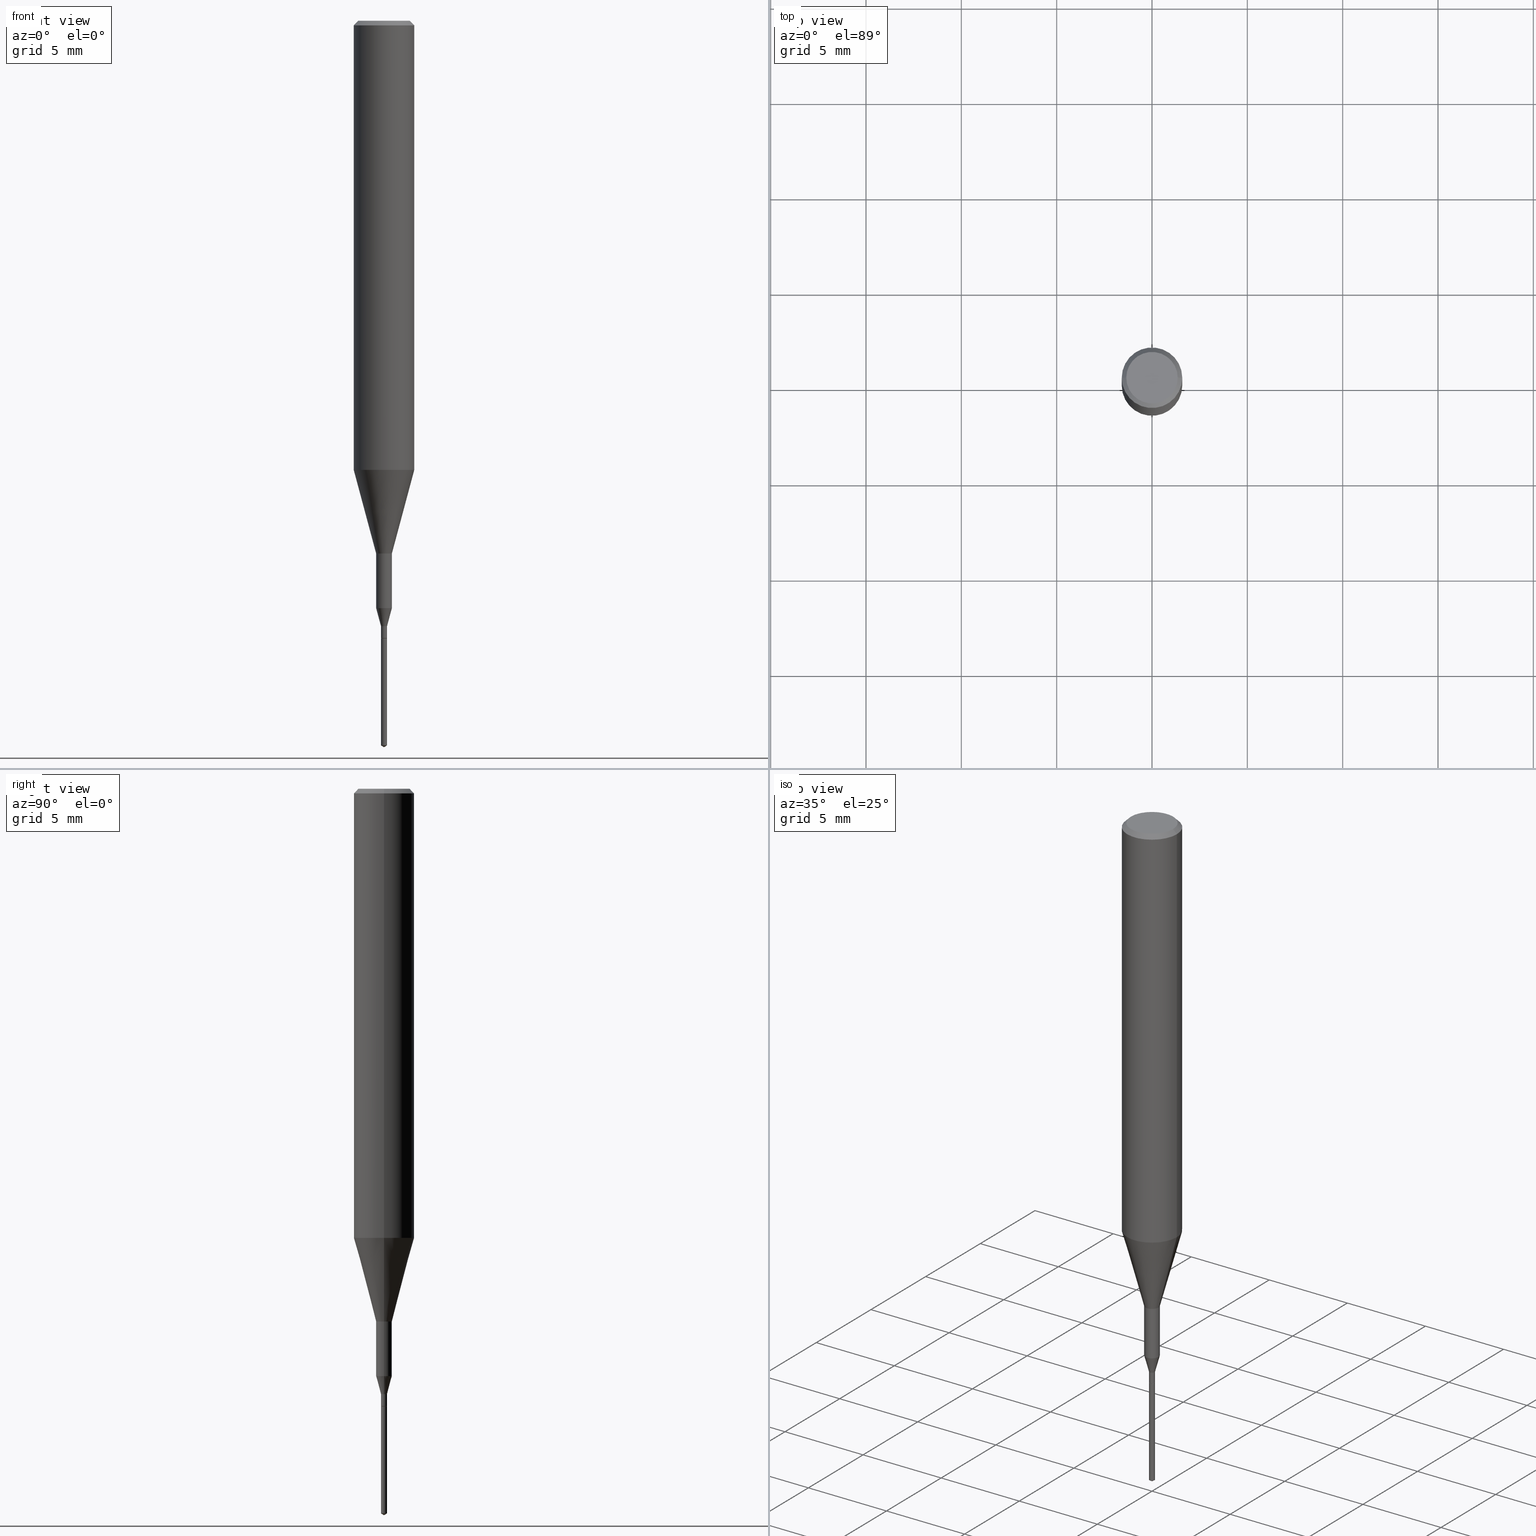
[diagram: canonical four-view strip — front | top / right | iso, engineering-drawing reading convention]
A machine part, canonical four-view strip (front | top / right | iso — engineering-drawing reading convention). The complete STEP part file that produces these views, byte-faithful:
ISO-10303-21;
HEADER;
FILE_DESCRIPTION (( 'STEP AP203' ),
    '1' );
FILE_NAME ('07270.STEP',
    '2024-04-19T13:30:35',
    ( '' ),
    ( '' ),
    'SwSTEP 2.0',
    'SolidWorks 2023',
    '' );
FILE_SCHEMA (( 'CONFIG_CONTROL_DESIGN' ));
ENDSEC;

DATA;
#1 = DIRECTION ( 'NONE',  ( -2.445468806185136597E-29, 3.491481338843145583E-15, 1.000000000000000000 ) ) ;
#2 = LENGTH_MEASURE_WITH_UNIT ( LENGTH_MEASURE( 0.02539999999999999897 ), #369 );
#3 = DESIGN_CONTEXT ( 'detailed design', #356, 'design' ) ;
#4 = EDGE_CURVE ( 'NONE', #430, #511, #482, .T. ) ;
#5 = DIRECTION ( 'NONE',  ( 1.000000000000000000, -6.982962677686258033E-15, 0.000000000000000000 ) ) ;
#6 = CONICAL_SURFACE ( 'NONE', #314, 0.005749999999999999903, 0.7853981633975571919 ) ;
#7 = VECTOR ( 'NONE', #295, 39.37007874015748143 ) ;
#8 = EDGE_CURVE ( 'NONE', #30, #259, #227, .T. ) ;
#9 = FACE_OUTER_BOUND ( 'NONE', #397, .T. ) ;
#10 = ORIENTED_EDGE ( 'NONE', *, *, #512, .T. ) ;
#11 = PERSON_AND_ORGANIZATION_ROLE ( 'design_owner' ) ;
#12 = AXIS2_PLACEMENT_3D ( 'NONE', #569, #475, #521 ) ;
#13 = CARTESIAN_POINT ( 'NONE',  ( 2.267909797027042920E-29, -3.237974131778804114E-15, -0.9273926501499395458 ) ) ;
#14 = LOCAL_TIME ( 9, 30, 35.00000000000000000, #145 ) ;
#15 = CC_DESIGN_DATE_AND_TIME_ASSIGNMENT ( #115, #478, ( #59 ) ) ;
#16 = CC_DESIGN_APPROVAL ( #451, ( #245 ) ) ;
#17 = CARTESIAN_POINT ( 'NONE',  ( 0.000000000000000000, 0.000000000000000000, 0.000000000000000000 ) ) ;
#18 = ADVANCED_FACE ( 'NONE', ( #47 ), #587, .T. ) ;
#19 = DIRECTION ( 'NONE',  ( -6.982962677686265922E-15, -1.000000000000000000, 3.468864327941858877E-15 ) ) ;
#20 = CARTESIAN_POINT ( 'NONE',  ( 2.965569869401343581E-29, -4.234047816051519875E-15, -1.212679491924311348 ) ) ;
#21 = DIRECTION ( 'NONE',  ( -2.445468806185136597E-29, 3.491481338843145583E-15, 1.000000000000000000 ) ) ;
#22 = EDGE_LOOP ( 'NONE', ( #344, #141, #532, #168 ) ) ;
#23 = FACE_OUTER_BOUND ( 'NONE', #29, .T. ) ;
#24 = DATE_TIME_ROLE ( 'classification_date' ) ;
#25 = ORIENTED_EDGE ( 'NONE', *, *, #548, .F. ) ;
#26 = DIRECTION ( 'NONE',  ( 0.2588190451025214611, 1.565188264969620982E-15, 0.9659258262890679791 ) ) ;
#27 = AXIS2_PLACEMENT_3D ( 'NONE', #563, #382, #427 ) ;
#28 = AXIS2_PLACEMENT_3D ( 'NONE', #343, #280, #104 ) ;
#29 = EDGE_LOOP ( 'NONE', ( #146, #387, #243, #25 ) ) ;
#30 = VERTEX_POINT ( 'NONE', #35 ) ;
#31 = EDGE_CURVE ( 'NONE', #585, #466, #514, .T. ) ;
#32 = ORIENTED_EDGE ( 'NONE', *, *, #460, .F. ) ;
#33 = DIRECTION ( 'NONE',  ( -2.445468806185136597E-29, 3.491481338843145583E-15, 1.000000000000000000 ) ) ;
#34 = CARTESIAN_POINT ( 'NONE',  ( -0.006250000000000008153, -4.405484045370583987E-15, -1.274500000000000188 ) ) ;
#35 = CARTESIAN_POINT ( 'NONE',  ( -0.05312499999999999861, 3.873362110279099094E-16, -5.787680772773044021E-18 ) ) ;
#36 = CARTESIAN_POINT ( 'NONE',  ( 3.117972727886049049E-29, -4.451638707025011594E-15, -1.275000000000000133 ) ) ;
#37 = AXIS2_PLACEMENT_3D ( 'NONE', #421, #54, #194 ) ;
#38 = CIRCLE ( 'NONE', #380, 0.01625000000000000056 ) ;
#39 = DIRECTION ( 'NONE',  ( 1.000000000000000000, -6.982962677686267499E-15, 4.876176775795936353E-29 ) ) ;
#40 = ADVANCED_FACE ( 'NONE', ( #415 ), #188, .T. ) ;
#41 = DIRECTION ( 'NONE',  ( -2.445468806185136597E-29, 3.491481338843145583E-15, 1.000000000000000000 ) ) ;
#42 = CARTESIAN_POINT ( 'NONE',  ( 0.006250000000000022031, -4.364351673553932102E-17, 3.047610484872470380E-31 ) ) ;
#43 = DIRECTION ( 'NONE',  ( -5.985567269335822161E-15, -0.8571673007020932378, 0.5150380749100860189 ) ) ;
#44 = FACE_OUTER_BOUND ( 'NONE', #221, .T. ) ;
#45 = AXIS2_PLACEMENT_3D ( 'NONE', #182, #275, #235 ) ;
#46 = LINE ( 'NONE', #418, #411 ) ;
#47 = FACE_OUTER_BOUND ( 'NONE', #223, .T. ) ;
#48 = CARTESIAN_POINT ( 'NONE',  ( 3.117972727886049049E-29, -4.451638707025011594E-15, -1.275000000000000133 ) ) ;
#49 = DIRECTION ( 'NONE',  ( -2.445468806185136877E-29, 3.491481338843145188E-15, 1.000000000000000000 ) ) ;
#50 = ORIENTED_EDGE ( 'NONE', *, *, #214, .F. ) ;
#51 = CC_DESIGN_PERSON_AND_ORGANIZATION_ASSIGNMENT ( #60, #247, ( #463 ) ) ;
#52 = CARTESIAN_POINT ( 'NONE',  ( 2.965569869401343581E-29, -4.234047816051519875E-15, -1.212679491924311348 ) ) ;
#53 = ORIENTED_EDGE ( 'NONE', *, *, #147, .F. ) ;
#54 = DIRECTION ( 'NONE',  ( -2.438088387897960049E-29, 3.491481338843145188E-15, 1.000000000000000000 ) ) ;
#55 = CONICAL_SURFACE ( 'NONE', #565, 0.06250000000000011102, 0.2617993877991501850 ) ;
#56 = ORIENTED_EDGE ( 'NONE', *, *, #147, .T. ) ;
#57 = DIRECTION ( 'NONE',  ( 1.000000000000000000, -6.982962677686265922E-15, 0.000000000000000000 ) ) ;
#58 = DIRECTION ( 'NONE',  ( -2.448375364327009904E-29, 3.487318982152967289E-15, 1.000000000000000000 ) ) ;
#59 = PRODUCT_DEFINITION ( 'UNKNOWN', '', #463, #3 ) ;
#60 = PERSON_AND_ORGANIZATION ( #368, #455 ) ;
#61 = ORIENTED_EDGE ( 'NONE', *, *, #334, .T. ) ;
#62 = FACE_OUTER_BOUND ( 'NONE', #306, .T. ) ;
#63 = VECTOR ( 'NONE', #88, 39.37007874015748143 ) ;
#64 = ORIENTED_EDGE ( 'NONE', *, *, #334, .F. ) ;
#65 = FACE_OUTER_BOUND ( 'NONE', #203, .T. ) ;
#66 = ORIENTED_EDGE ( 'NONE', *, *, #555, .F. ) ;
#67 = SECURITY_CLASSIFICATION_LEVEL ( 'unclassified' ) ;
#68 = ORIENTED_EDGE ( 'NONE', *, *, #274, .T. ) ;
#69 =( NAMED_UNIT ( * ) PLANE_ANGLE_UNIT ( ) SI_UNIT ( $, .RADIAN. ) );
#70 = ADVANCED_FACE ( 'NONE', ( #9 ), #6, .T. ) ;
#71 =( NAMED_UNIT ( * ) SI_UNIT ( $, .STERADIAN. ) SOLID_ANGLE_UNIT ( ) );
#72 = ORIENTED_EDGE ( 'NONE', *, *, #291, .F. ) ;
#73 = CARTESIAN_POINT ( 'NONE',  ( 3.117972727886049049E-29, -4.451638707025011594E-15, -1.275000000000000133 ) ) ;
#74 = VECTOR ( 'NONE', #584, 39.37007874015748143 ) ;
#75 = VECTOR ( 'NONE', #26, 39.37007874015748143 ) ;
#76 = ORIENTED_EDGE ( 'NONE', *, *, #140, .F. ) ;
#77 = DIRECTION ( 'NONE',  ( 1.000000000000000000, -6.982962677686267499E-15, 4.876176775795936353E-29 ) ) ;
#78 = VERTEX_POINT ( 'NONE', #566 ) ;
#79 = DIRECTION ( 'NONE',  ( 6.090539988449656162E-15, 0.8571673007020966795, 0.5150380749100800237 ) ) ;
#80 = CARTESIAN_POINT ( 'NONE',  ( 4.440892098504285983E-17, 0.006249999999994777095, -1.496244621131077590 ) ) ;
#81 = APPROVAL ( #337, 'UNSPECIFIED' ) ;
#82 = DIRECTION ( 'NONE',  ( 1.000000000000000000, -6.982962677686266711E-15, 0.000000000000000000 ) ) ;
#83 = ADVANCED_FACE ( 'NONE', ( #333 ), #517, .T. ) ;
#84 = AXIS2_PLACEMENT_3D ( 'NONE', #374, #551, #285 ) ;
#85 = AXIS2_PLACEMENT_3D ( 'NONE', #174, #575, #363 ) ;
#86 = CARTESIAN_POINT ( 'NONE',  ( 2.965569869401343581E-29, -4.234047816051519875E-15, -1.212679491924311348 ) ) ;
#87 = ADVANCED_FACE ( 'NONE', ( #238 ), #414, .T. ) ;
#88 = DIRECTION ( 'NONE',  ( -0.7071067811866245112, 7.493145998870631839E-15, 0.7071067811864705233 ) ) ;
#89 = CARTESIAN_POINT ( 'NONE',  ( 0.000000000000000000, 0.000000000000000000, 0.000000000000000000 ) ) ;
#90 = DIRECTION ( 'NONE',  ( 1.000000000000000000, -6.982962677686266711E-15, 4.876176775795935232E-29 ) ) ;
#91 = EDGE_CURVE ( 'NONE', #211, #383, #423, .T. ) ;
#92 = CARTESIAN_POINT ( 'NONE',  ( 0.000000000000000000, 0.000000000000000000, 0.000000000000000000 ) ) ;
#93 = AXIS2_PLACEMENT_3D ( 'NONE', #142, #150, #335 ) ;
#94 = VECTOR ( 'NONE', #132, 39.37007874015748143 ) ;
#95 = CARTESIAN_POINT ( 'NONE',  ( 2.292627005798581499E-31, -3.273263755165472033E-17, -0.009375000000000065573 ) ) ;
#96 = LINE ( 'NONE', #185, #63 ) ;
#97 = ORIENTED_EDGE ( 'NONE', *, *, #8, .T. ) ;
#98 = DIRECTION ( 'NONE',  ( -2.445468806185136597E-29, 3.491481338843145583E-15, 1.000000000000000000 ) ) ;
#99 = EDGE_CURVE ( 'NONE', #437, #357, #148, .T. ) ;
#100 = EDGE_CURVE ( 'NONE', #259, #30, #443, .T. ) ;
#101 = COORDINATED_UNIVERSAL_TIME_OFFSET ( 5, 0, .BEHIND. ) ;
#102 = CONICAL_SURFACE ( 'NONE', #462, 0.06250000000000000000, 0.7853981633974452814 ) ;
#103 = AXIS2_PLACEMENT_3D ( 'NONE', #492, #321, #489 ) ;
#104 = DIRECTION ( 'NONE',  ( 1.000000000000000000, -6.982962677686331397E-15, 0.000000000000000000 ) ) ;
#105 = PERSON_AND_ORGANIZATION ( #368, #455 ) ;
#106 = EDGE_LOOP ( 'NONE', ( #287, #261 ) ) ;
#107 = EDGE_CURVE ( 'NONE', #383, #211, #370, .T. ) ;
#108 = ORIENTED_EDGE ( 'NONE', *, *, #31, .F. ) ;
#109 = DIRECTION ( 'NONE',  ( -2.448375364327009624E-29, 3.487318982152967684E-15, 1.000000000000000000 ) ) ;
#110 = EDGE_LOOP ( 'NONE', ( #64, #312, #56, #461 ) ) ;
#111 = DIRECTION ( 'NONE',  ( 1.000000000000000000, -6.982962677686266711E-15, 0.000000000000000000 ) ) ;
#112 = AXIS2_PLACEMENT_3D ( 'NONE', #73, #170, #540 ) ;
#113 = AXIS2_PLACEMENT_3D ( 'NONE', #165, #535, #120 ) ;
#114 = CC_DESIGN_APPROVAL ( #81, ( #463 ) ) ;
#115 = DATE_AND_TIME ( #253, #14 ) ;
#116 = ORIENTED_EDGE ( 'NONE', *, *, #373, .T. ) ;
#117 = ADVANCED_FACE ( 'NONE', ( #303 ), #204, .T. ) ;
#118 = CARTESIAN_POINT ( 'NONE',  ( -4.364351673550257119E-17, -0.006250000000005224467, -1.496244621131077590 ) ) ;
#119 = ORIENTED_EDGE ( 'NONE', *, *, #256, .T. ) ;
#120 = DIRECTION ( 'NONE',  ( 1.000000000000000000, -6.982962677686284854E-15, 0.000000000000000000 ) ) ;
#121 = EDGE_CURVE ( 'NONE', #466, #585, #483, .T. ) ;
#122 = ORIENTED_EDGE ( 'NONE', *, *, #107, .F. ) ;
#123 = CARTESIAN_POINT ( 'NONE',  ( 3.117972727886049049E-29, -4.451638707025011594E-15, -1.275000000000000133 ) ) ;
#124 = ORIENTED_EDGE ( 'NONE', *, *, #226, .T. ) ;
#125 = AXIS2_PLACEMENT_3D ( 'NONE', #52, #513, #422 ) ;
#126 = VECTOR ( 'NONE', #403, 39.37007874015748143 ) ;
#127 = CARTESIAN_POINT ( 'NONE',  ( -0.01625000000000000056, -4.118584621490503690E-15, -1.212679491924311348 ) ) ;
#128 = DIRECTION ( 'NONE',  ( -0.2588190451025214611, 5.211531920934550253E-15, 0.9659258262890679791 ) ) ;
#129 = CARTESIAN_POINT ( 'NONE',  ( 0.006250000000000035909, -4.407995190289472427E-15, -1.250000000000000000 ) ) ;
#130 = ADVANCED_FACE ( 'NONE', ( #296 ), #55, .T. ) ;
#131 = CYLINDRICAL_SURFACE ( 'NONE', #546, 0.006249999999999999480 ) ;
#132 = DIRECTION ( 'NONE',  ( -2.448375364327009624E-29, 3.487318982152967684E-15, 1.000000000000000000 ) ) ;
#133 = EDGE_CURVE ( 'NONE', #466, #78, #200, .T. ) ;
#134 = DIRECTION ( 'NONE',  ( -2.445468806185136597E-29, 3.491481338843145583E-15, 1.000000000000000000 ) ) ;
#135 = ADVANCED_FACE ( 'NONE', ( #62 ), #201, .T. ) ;
#136 = AXIS2_PLACEMENT_3D ( 'NONE', #95, #282, #193 ) ;
#137 = AXIS2_PLACEMENT_3D ( 'NONE', #499, #278, #240 ) ;
#138 = DIRECTION ( 'NONE',  ( -1.000000000000000000, 6.982962677686265922E-15, -4.876176775795935793E-29 ) ) ;
#139 = CARTESIAN_POINT ( 'NONE',  ( 3.117972727886049049E-29, -4.451638707025011594E-15, -1.275000000000000133 ) ) ;
#140 = EDGE_CURVE ( 'NONE', #481, #446, #494, .T. ) ;
#141 = ORIENTED_EDGE ( 'NONE', *, *, #544, .T. ) ;
#142 = CARTESIAN_POINT ( 'NONE',  ( 1.415359278996747967E-46, -2.020757941330909984E-32, -5.787680772770392401E-18 ) ) ;
#143 = ADVANCED_FACE ( 'NONE', ( #65 ), #588, .T. ) ;
#144 = DIRECTION ( 'NONE',  ( 0.000000000000000000, 0.000000000000000000, 1.000000000000000000 ) ) ;
#145 = COORDINATED_UNIVERSAL_TIME_OFFSET ( 5, 0, .BEHIND. ) ;
#146 = ORIENTED_EDGE ( 'NONE', *, *, #555, .T. ) ;
#147 = EDGE_CURVE ( 'NONE', #211, #481, #241, .T. ) ;
#148 = CIRCLE ( 'NONE', #27, 0.005749999999999999903 ) ;
#149 = VECTOR ( 'NONE', #262, 39.37007874015748143 ) ;
#150 = DIRECTION ( 'NONE',  ( -2.445468806185136597E-29, 3.491481338843145583E-15, 1.000000000000000000 ) ) ;
#151 = APPLICATION_PROTOCOL_DEFINITION ( 'international standard', 'config_control_design', 1994, #476 ) ;
#152 = PERSON_AND_ORGANIZATION_ROLE ( 'classification_officer' ) ;
#153 = ORIENTED_EDGE ( 'NONE', *, *, #586, .T. ) ;
#154 = DIRECTION ( 'NONE',  ( 1.000000000000000000, 0.000000000000000000, 0.000000000000000000 ) ) ;
#155 = EDGE_LOOP ( 'NONE', ( #360, #153, #267, #392 ) ) ;
#156 = CARTESIAN_POINT ( 'NONE',  ( 2.292627005798581499E-31, -3.273263755165472033E-17, -0.009375000000000065573 ) ) ;
#157 = ADVANCED_FACE ( 'NONE', ( #498 ), #550, .F. ) ;
#158 = EDGE_LOOP ( 'NONE', ( #124, #68, #294, #298 ) ) ;
#159 = VERTEX_POINT ( 'NONE', #332 ) ;
#160 = FACE_OUTER_BOUND ( 'NONE', #106, .T. ) ;
#161 = AXIS2_PLACEMENT_3D ( 'NONE', #48, #219, #497 ) ;
#162 = LOCAL_TIME ( 9, 30, 35.00000000000000000, #440 ) ;
#163 = EDGE_LOOP ( 'NONE', ( #528, #199, #32, #486 ) ) ;
#164 = ADVANCED_FACE ( 'NONE', ( #505 ), #301, .T. ) ;
#165 = CARTESIAN_POINT ( 'NONE',  ( 3.116749993482957368E-29, -4.449892966355590090E-15, -1.274500000000000188 ) ) ;
#166 = EDGE_LOOP ( 'NONE', ( #441, #436, #116, #72 ) ) ;
#167 = LINE ( 'NONE', #589, #149 ) ;
#168 = ORIENTED_EDGE ( 'NONE', *, *, #379, .F. ) ;
#169 = LINE ( 'NONE', #538, #515 ) ;
#170 = DIRECTION ( 'NONE',  ( -2.445468806185136597E-29, 3.491481338843145583E-15, 1.000000000000000000 ) ) ;
#171 = ORIENTED_EDGE ( 'NONE', *, *, #445, .F. ) ;
#172 = ORIENTED_EDGE ( 'NONE', *, *, #260, .F. ) ;
#173 = EDGE_CURVE ( 'NONE', #430, #523, #471, .T. ) ;
#174 = CARTESIAN_POINT ( 'NONE',  ( 3.117972727886049049E-29, -4.451638707025011594E-15, -1.275000000000000133 ) ) ;
#175 = CLOSED_SHELL ( 'NONE', ( #117, #143, #417, #304, #581 ) ) ;
#176 = VECTOR ( 'NONE', #509, 39.37007874015748143 ) ;
#177 = DIRECTION ( 'NONE',  ( -2.445468806185136877E-29, 3.491481338843145188E-15, 1.000000000000000000 ) ) ;
#178 = ADVANCED_FACE ( 'NONE', ( #516 ), #556, .F. ) ;
#179 = CARTESIAN_POINT ( 'NONE',  ( 3.659662607753242750E-29, -5.223189273994658811E-15, -1.496244621131077590 ) ) ;
#180 = PERSON_AND_ORGANIZATION ( #368, #455 ) ;
#181 = FACE_OUTER_BOUND ( 'NONE', #580, .T. ) ;
#182 = CARTESIAN_POINT ( 'NONE',  ( 3.116749993482957368E-29, -4.449892966355590090E-15, -1.274500000000000188 ) ) ;
#183 = AXIS2_PLACEMENT_3D ( 'NONE', #20, #469, #571 ) ;
#184 = DIRECTION ( 'NONE',  ( -2.448375364327009904E-29, 3.487318982152967289E-15, 1.000000000000000000 ) ) ;
#185 = CARTESIAN_POINT ( 'NONE',  ( -0.005749999999999999903, -4.410782499718806389E-15, -1.275000000000000133 ) ) ;
#186 = AXIS2_PLACEMENT_3D ( 'NONE', #36, #491, #268 ) ;
#187 = APPROVAL_PERSON_ORGANIZATION ( #432, #451, #562 ) ;
#188 = CYLINDRICAL_SURFACE ( 'NONE', #84, 0.06250000000000005551 ) ;
#189 = LINE ( 'NONE', #552, #126 ) ;
#190 = ADVANCED_FACE ( 'NONE', ( #470 ), #102, .T. ) ;
#191 = ORIENTED_EDGE ( 'NONE', *, *, #121, .F. ) ;
#192 = AXIS2_PLACEMENT_3D ( 'NONE', #319, #1, #39 ) ;
#193 = DIRECTION ( 'NONE',  ( -1.000000000000000000, 6.982962677686266711E-15, 0.000000000000000000 ) ) ;
#194 = DIRECTION ( 'NONE',  ( 1.000000000000000000, -6.982962677686265922E-15, 4.876176775795935793E-29 ) ) ;
#195 = DIRECTION ( 'NONE',  ( -2.445468806185136597E-29, 3.491481338843145583E-15, 1.000000000000000000 ) ) ;
#196 = EDGE_CURVE ( 'NONE', #357, #437, #213, .T. ) ;
#197 = DATE_AND_TIME ( #429, #162 ) ;
#198 = CALENDAR_DATE ( 2024, 19, 4 ) ;
#199 = ORIENTED_EDGE ( 'NONE', *, *, #133, .T. ) ;
#200 = LINE ( 'NONE', #255, #388 ) ;
#201 = CONICAL_SURFACE ( 'NONE', #183, 0.01625000000000000056, 0.2617993877991492413 ) ;
#202 = LOCAL_TIME ( 9, 30, 35.00000000000000000, #101 ) ;
#203 = EDGE_LOOP ( 'NONE', ( #220, #490, #108 ) ) ;
#204 = CYLINDRICAL_SURFACE ( 'NONE', #12, 0.006249999999999999480 ) ;
#205 = CARTESIAN_POINT ( 'NONE',  ( 2.292627005798581499E-31, -3.273263755165472033E-17, -0.009375000000000065573 ) ) ;
#206 = FACE_OUTER_BOUND ( 'NONE', #308, .T. ) ;
#207 = ORIENTED_EDGE ( 'NONE', *, *, #544, .F. ) ;
#208 = ADVANCED_FACE ( 'NONE', ( #181 ), #234, .T. ) ;
#209 = CYLINDRICAL_SURFACE ( 'NONE', #399, 0.006250000000000022031 ) ;
#210 = APPROVAL_DATE_TIME ( #472, #81 ) ;
#211 = VERTEX_POINT ( 'NONE', #449 ) ;
#212 = DIRECTION ( 'NONE',  ( -1.000000000000000000, 6.982962677686266711E-15, 0.000000000000000000 ) ) ;
#213 = CIRCLE ( 'NONE', #112, 0.005749999999999999903 ) ;
#214 = EDGE_CURVE ( 'NONE', #442, #511, #270, .T. ) ;
#215 = VECTOR ( 'NONE', #79, 39.37007874015748854 ) ;
#216 = VERTEX_POINT ( 'NONE', #401 ) ;
#217 = CARTESIAN_POINT ( 'NONE',  ( 0.05312499999999999861, -4.129888592719939842E-16, -5.787680772767651417E-18 ) ) ;
#218 = ORIENTED_EDGE ( 'NONE', *, *, #256, .F. ) ;
#219 = DIRECTION ( 'NONE',  ( -2.448375364327009904E-29, 3.487318982152967289E-15, 1.000000000000000000 ) ) ;
#220 = ORIENTED_EDGE ( 'NONE', *, *, #311, .F. ) ;
#221 = EDGE_LOOP ( 'NONE', ( #573, #341, #488, #122 ) ) ;
#222 = PLANE ( 'NONE',  #85 ) ;
#223 = EDGE_LOOP ( 'NONE', ( #171, #248, #353, #172 ) ) ;
#224 = CARTESIAN_POINT ( 'NONE',  ( -0.06250000000000011102, -2.793884921928740709E-15, -0.9273926501499395458 ) ) ;
#225 = DIRECTION ( 'NONE',  ( 1.000000000000000000, -6.982962677686259611E-15, 0.000000000000000000 ) ) ;
#226 = EDGE_CURVE ( 'NONE', #159, #541, #323, .T. ) ;
#227 = CIRCLE ( 'NONE', #398, 0.05312499999999999861 ) ;
#228 = VECTOR ( 'NONE', #49, 39.37007874015748143 ) ;
#229 = CC_DESIGN_PERSON_AND_ORGANIZATION_ASSIGNMENT ( #531, #11, ( #336 ) ) ;
#230 = CARTESIAN_POINT ( 'NONE',  ( 0.06250000000000005551, -4.364351673553920638E-16, 3.047610484872462323E-30 ) ) ;
#231 = FACE_OUTER_BOUND ( 'NONE', #166, .T. ) ;
#232 = LINE ( 'NONE', #381, #176 ) ;
#233 = DIRECTION ( 'NONE',  ( 1.000000000000000000, -6.982962677686258033E-15, 0.000000000000000000 ) ) ;
#234 = CYLINDRICAL_SURFACE ( 'NONE', #322, 0.01624999999999999709 ) ;
#235 = DIRECTION ( 'NONE',  ( 1.000000000000000000, -6.982962677686284854E-15, 0.000000000000000000 ) ) ;
#236 = AXIS2_PLACEMENT_3D ( 'NONE', #433, #250, #345 ) ;
#237 = DIRECTION ( 'NONE',  ( -6.982962677686265133E-15, -1.000000000000000000, 0.000000000000000000 ) ) ;
#238 = FACE_OUTER_BOUND ( 'NONE', #338, .T. ) ;
#239 = LINE ( 'NONE', #375, #495 ) ;
#240 = DIRECTION ( 'NONE',  ( 1.000000000000000000, -6.982962677686265922E-15, 0.000000000000000000 ) ) ;
#241 = LINE ( 'NONE', #230, #542 ) ;
#242 = EDGE_CURVE ( 'NONE', #450, #466, #533, .T. ) ;
#243 = ORIENTED_EDGE ( 'NONE', *, *, #409, .F. ) ;
#244 = AXIS2_PLACEMENT_3D ( 'NONE', #582, #33, #225 ) ;
#245 = SECURITY_CLASSIFICATION ( '', '', #67 ) ;
#246 = DIRECTION ( 'NONE',  ( -2.445468806185136597E-29, 3.491481338843145583E-15, 1.000000000000000000 ) ) ;
#247 = PERSON_AND_ORGANIZATION_ROLE ( 'design_supplier' ) ;
#248 = ORIENTED_EDGE ( 'NONE', *, *, #549, .T. ) ;
#249 = ORIENTED_EDGE ( 'NONE', *, *, #413, .F. ) ;
#250 = DIRECTION ( 'NONE',  ( -2.448375364327009904E-29, 3.487318982152967289E-15, 1.000000000000000000 ) ) ;
#251 = EDGE_LOOP ( 'NONE', ( #473, #61, #76, #53 ) ) ;
#252 = AXIS2_PLACEMENT_3D ( 'NONE', #123, #452, #313 ) ;
#253 = CALENDAR_DATE ( 2024, 19, 4 ) ;
#254 = ORIENTED_EDGE ( 'NONE', *, *, #311, .T. ) ;
#255 = CARTESIAN_POINT ( 'NONE',  ( 4.440892098503743025E-17, 0.006249999999995547312, -1.275000000000000133 ) ) ;
#256 = EDGE_CURVE ( 'NONE', #523, #442, #167, .T. ) ;
#257 = CARTESIAN_POINT ( 'NONE',  ( 0.01625000000000000056, -4.347520959563921552E-15, -1.212679491924311348 ) ) ;
#258 = DATE_AND_TIME ( #389, #271 ) ;
#259 = VERTEX_POINT ( 'NONE', #217 ) ;
#260 = EDGE_CURVE ( 'NONE', #541, #159, #288, .T. ) ;
#261 = ORIENTED_EDGE ( 'NONE', *, *, #291, .T. ) ;
#262 = DIRECTION ( 'NONE',  ( 0.2588190451025205729, 1.565188264969628081E-15, 0.9659258262890684232 ) ) ;
#263 = AXIS2_PLACEMENT_3D ( 'NONE', #13, #290, #57 ) ;
#264 = CIRCLE ( 'NONE', #45, 0.006250000000000008153 ) ;
#265 = ADVANCED_FACE ( 'NONE', ( #359 ), #371, .T. ) ;
#266 = ORIENTED_EDGE ( 'NONE', *, *, #196, .T. ) ;
#267 = ORIENTED_EDGE ( 'NONE', *, *, #548, .T. ) ;
#268 = DIRECTION ( 'NONE',  ( -6.982962677686265133E-15, -1.000000000000000000, 0.000000000000000000 ) ) ;
#269 = CARTESIAN_POINT ( 'NONE',  ( 0.005749999999999999903, -4.491790742421706965E-15, -1.275000000000000133 ) ) ;
#270 = CIRCLE ( 'NONE', #286, 0.01625000000000000056 ) ;
#271 = LOCAL_TIME ( 9, 30, 35.00000000000000000, #395 ) ;
#272 = EDGE_CURVE ( 'NONE', #504, #430, #484, .T. ) ;
#273 = DIRECTION ( 'NONE',  ( -2.448375364327009904E-29, 3.487318982152967289E-15, 1.000000000000000000 ) ) ;
#274 = EDGE_CURVE ( 'NONE', #541, #383, #365, .T. ) ;
#275 = DIRECTION ( 'NONE',  ( -2.445468806185136597E-29, 3.491481338843145583E-15, 1.000000000000000000 ) ) ;
#276 = DIRECTION ( 'NONE',  ( 1.000000000000000000, -6.982962677686266711E-15, 4.875930095424100059E-29 ) ) ;
#277 = AXIS2_PLACEMENT_3D ( 'NONE', #156, #524, #111 ) ;
#278 = DIRECTION ( 'NONE',  ( -2.445468806185136597E-29, 3.491481338843145583E-15, 1.000000000000000000 ) ) ;
#279 = CARTESIAN_POINT ( 'NONE',  ( 3.056836007731421306E-29, -4.364351673553932471E-15, -1.250000000000000000 ) ) ;
#280 = DIRECTION ( 'NONE',  ( -2.445468806185136597E-29, 3.491481338843145583E-15, 1.000000000000000000 ) ) ;
#281 = ORIENTED_EDGE ( 'NONE', *, *, #346, .T. ) ;
#282 = DIRECTION ( 'NONE',  ( 2.445468806185136597E-29, -3.491481338843145583E-15, -1.000000000000000000 ) ) ;
#283 = EDGE_LOOP ( 'NONE', ( #97, #536 ) ) ;
#284 = DIRECTION ( 'NONE',  ( 1.000000000000000000, -6.982962677686265922E-15, 0.000000000000000000 ) ) ;
#285 = DIRECTION ( 'NONE',  ( 1.000000000000000000, -6.982962677686266711E-15, 4.876176775795935232E-29 ) ) ;
#286 = AXIS2_PLACEMENT_3D ( 'NONE', #525, #41, #233 ) ;
#287 = ORIENTED_EDGE ( 'NONE', *, *, #460, .T. ) ;
#288 = CIRCLE ( 'NONE', #244, 0.01624999999999999709 ) ;
#289 = CC_DESIGN_APPROVAL ( #503, ( #59 ) ) ;
#290 = DIRECTION ( 'NONE',  ( -2.445468806185136597E-29, 3.491481338843145583E-15, 1.000000000000000000 ) ) ;
#291 = EDGE_CURVE ( 'NONE', #78, #216, #302, .T. ) ;
#292 = DIRECTION ( 'NONE',  ( 1.000000000000000000, -6.982962677686205968E-15, 0.000000000000000000 ) ) ;
#293 = CARTESIAN_POINT ( 'NONE',  ( 0.01624999999999999709, -1.134731435124018242E-16, 7.923787260668394963E-31 ) ) ;
#294 = ORIENTED_EDGE ( 'NONE', *, *, #91, .F. ) ;
#295 = DIRECTION ( 'NONE',  ( -2.445468806185136877E-29, 3.491481338843145188E-15, 1.000000000000000000 ) ) ;
#296 = FACE_OUTER_BOUND ( 'NONE', #158, .T. ) ;
#297 = APPROVAL_ROLE ( '' ) ;
#298 = ORIENTED_EDGE ( 'NONE', *, *, #574, .F. ) ;
#299 = DIRECTION ( 'NONE',  ( -2.445468806185136597E-29, 3.491481338843145583E-15, 1.000000000000000000 ) ) ;
#300 = DIMENSIONAL_EXPONENTS ( 1.000000000000000000, 0.000000000000000000, 0.000000000000000000, 0.000000000000000000, 0.000000000000000000, 0.000000000000000000, 0.000000000000000000 ) ;
#301 = CONICAL_SURFACE ( 'NONE', #136, 0.06250000000000000000, 0.7853981633974452814 ) ;
#302 = CIRCLE ( 'NONE', #186, 0.006250000000000000347 ) ;
#303 = FACE_OUTER_BOUND ( 'NONE', #163, .T. ) ;
#304 = ADVANCED_FACE ( 'NONE', ( #231 ), #131, .T. ) ;
#305 = PERSON_AND_ORGANIZATION ( #368, #455 ) ;
#306 = EDGE_LOOP ( 'NONE', ( #358, #318, #119, #426 ) ) ;
#307 = ORIENTED_EDGE ( 'NONE', *, *, #8, .F. ) ;
#308 = EDGE_LOOP ( 'NONE', ( #310, #254, #191 ) ) ;
#309 = CARTESIAN_POINT ( 'NONE',  ( 3.672628038554684134E-29, -5.230978473229451328E-15, -1.500000000000000222 ) ) ;
#310 = ORIENTED_EDGE ( 'NONE', *, *, #242, .F. ) ;
#311 = EDGE_CURVE ( 'NONE', #450, #585, #239, .T. ) ;
#312 = ORIENTED_EDGE ( 'NONE', *, *, #107, .T. ) ;
#313 = DIRECTION ( 'NONE',  ( 1.000000000000000000, -6.982962677686205968E-15, 0.000000000000000000 ) ) ;
#314 = AXIS2_PLACEMENT_3D ( 'NONE', #139, #428, #292 ) ;
#315 = CIRCLE ( 'NONE', #558, 0.06250000000000000000 ) ;
#316 = MECHANICAL_CONTEXT ( 'NONE', #476, 'mechanical' ) ;
#317 = DIRECTION ( 'NONE',  ( -2.445468806185136597E-29, 3.491481338843145583E-15, 1.000000000000000000 ) ) ;
#318 = ORIENTED_EDGE ( 'NONE', *, *, #173, .T. ) ;
#319 = CARTESIAN_POINT ( 'NONE',  ( 0.000000000000000000, 0.000000000000000000, 0.000000000000000000 ) ) ;
#320 = FACE_OUTER_BOUND ( 'NONE', #155, .T. ) ;
#321 = DIRECTION ( 'NONE',  ( -2.445468806185136597E-29, 3.491481338843145583E-15, 1.000000000000000000 ) ) ;
#322 = AXIS2_PLACEMENT_3D ( 'NONE', #326, #317, #77 ) ;
#323 = CIRCLE ( 'NONE', #103, 0.01624999999999999709 ) ;
#324 = EDGE_CURVE ( 'NONE', #437, #504, #96, .T. ) ;
#325 = UNCERTAINTY_MEASURE_WITH_UNIT (LENGTH_MEASURE( 1.000000000000000082E-05 ), #534, 'distance_accuracy_value', 'NONE');
#326 = CARTESIAN_POINT ( 'NONE',  ( 0.000000000000000000, 0.000000000000000000, 0.000000000000000000 ) ) ;
#327 = DIRECTION ( 'NONE',  ( -2.445468806185136597E-29, 3.491481338843145583E-15, 1.000000000000000000 ) ) ;
#328 = CARTESIAN_POINT ( 'NONE',  ( -0.01624999999999999709, -3.921875449828473803E-15, -1.100000000000000089 ) ) ;
#329 = AXIS2_PLACEMENT_3D ( 'NONE', #554, #273, #372 ) ;
#330 = VECTOR ( 'NONE', #477, 39.37007874015748143 ) ;
#331 = MANIFOLD_SOLID_BREP ( 'Body-Move/Copy2[2]', #362 ) ;
#332 = CARTESIAN_POINT ( 'NONE',  ( 0.01624999999999999709, -3.954102616239861778E-15, -1.100000000000000089 ) ) ;
#333 = FACE_OUTER_BOUND ( 'NONE', #110, .T. ) ;
#334 = EDGE_CURVE ( 'NONE', #383, #446, #189, .T. ) ;
#335 = DIRECTION ( 'NONE',  ( 1.000000000000000000, -6.982962677686266711E-15, 4.875930095424100059E-29 ) ) ;
#336 = PRODUCT ( '07270', '07270', '', ( #316 ) ) ;
#337 = APPROVAL_STATUS ( 'not_yet_approved' ) ;
#338 = EDGE_LOOP ( 'NONE', ( #479, #405, #50, #218 ) ) ;
#339 = ADVANCED_FACE ( 'NONE', ( #44 ), #500, .T. ) ;
#340 = MANIFOLD_SOLID_BREP ( 'Body-Move/Copy2[1]', #175 ) ;
#341 = ORIENTED_EDGE ( 'NONE', *, *, #260, .T. ) ;
#342 = CONICAL_SURFACE ( 'NONE', #474, 65.52281426576342938, 1.029744258676620783 ) ;
#343 = CARTESIAN_POINT ( 'NONE',  ( 3.056836007731421306E-29, -4.364351673553932471E-15, -1.250000000000000000 ) ) ;
#344 = ORIENTED_EDGE ( 'NONE', *, *, #100, .F. ) ;
#345 = DIRECTION ( 'NONE',  ( -6.982962677686265133E-15, -1.000000000000000000, 0.000000000000000000 ) ) ;
#346 = EDGE_CURVE ( 'NONE', #446, #481, #315, .T. ) ;
#347 = CARTESIAN_POINT ( 'NONE',  ( 3.672563046490514996E-29, -5.230978473229451328E-15, -1.500000000000000222 ) ) ;
#348 = DATE_AND_TIME ( #352, #202 ) ;
#349 = CARTESIAN_POINT ( 'NONE',  ( 1.415359278996747967E-46, -2.020757941330909984E-32, -5.787680772770392401E-18 ) ) ;
#350 = DIRECTION ( 'NONE',  ( 1.000000000000000000, -6.982962677686265922E-15, 0.000000000000000000 ) ) ;
#351 = DIRECTION ( 'NONE',  ( 2.445468806185136597E-29, -3.491481338843145583E-15, -1.000000000000000000 ) ) ;
#352 = CALENDAR_DATE ( 2024, 19, 4 ) ;
#353 = ORIENTED_EDGE ( 'NONE', *, *, #413, .T. ) ;
#354 = AXIS2_PLACEMENT_3D ( 'NONE', #179, #184, #237 ) ;
#355 = APPROVAL_PERSON_ORGANIZATION ( #527, #81, #386 ) ;
#356 = APPLICATION_CONTEXT ( 'configuration controlled 3d designs of mechanical parts and assemblies' ) ;
#357 = VERTEX_POINT ( 'NONE', #269 ) ;
#358 = ORIENTED_EDGE ( 'NONE', *, *, #4, .F. ) ;
#359 = FACE_OUTER_BOUND ( 'NONE', #402, .T. ) ;
#360 = ORIENTED_EDGE ( 'NONE', *, *, #272, .F. ) ;
#361 = ORIENTED_EDGE ( 'NONE', *, *, #324, .F. ) ;
#362 = CLOSED_SHELL ( 'NONE', ( #164, #40, #130, #208, #87, #456, #265, #178, #70, #530, #135, #18, #339, #83, #190, #157 ) ) ;
#363 = DIRECTION ( 'NONE',  ( 6.982962677686265922E-15, 1.000000000000000000, -3.487318982152967684E-15 ) ) ;
#364 = AXIS2_PLACEMENT_3D ( 'NONE', #17, #144, #154 ) ;
#365 = LINE ( 'NONE', #224, #485 ) ;
#366 = CARTESIAN_POINT ( 'NONE',  ( 3.117972727886049049E-29, -4.451638707025011594E-15, -1.275000000000000133 ) ) ;
#367 = LINE ( 'NONE', #545, #94 ) ;
#368 = PERSON ( 'UNSPECIFIED', 'UNSPECIFIED', 'UNSPECIFIED', ('UNSPECIFIED'), ('UNSPECIFIED'), ('UNSPECIFIED') ) ;
#369 =( LENGTH_UNIT ( ) NAMED_UNIT ( * ) SI_UNIT ( $, .METRE. ) );
#370 = CIRCLE ( 'NONE', #557, 0.06250000000000011102 ) ;
#371 = CONICAL_SURFACE ( 'NONE', #252, 0.005749999999999999903, 0.7853981633975571919 ) ;
#372 = DIRECTION ( 'NONE',  ( -6.982962677686265922E-15, -1.000000000000000000, 3.468864327941858877E-15 ) ) ;
#373 = EDGE_CURVE ( 'NONE', #585, #216, #367, .T. ) ;
#374 = CARTESIAN_POINT ( 'NONE',  ( 0.000000000000000000, 0.000000000000000000, 0.000000000000000000 ) ) ;
#375 = CARTESIAN_POINT ( 'NONE',  ( 3.665151323228738497E-29, -5.241592482789406233E-15, -1.500000000000000222 ) ) ;
#376 = ADVANCED_BREP_SHAPE_REPRESENTATION ( '07270', ( #340, #331, #364 ), #543 ) ;
#377 = CARTESIAN_POINT ( 'NONE',  ( 0.000000000000000000, 0.000000000000000000, 0.000000000000000000 ) ) ;
#378 = CARTESIAN_POINT ( 'NONE',  ( 2.292627005798581499E-31, -3.273263755165472033E-17, -0.009375000000000065573 ) ) ;
#379 = EDGE_CURVE ( 'NONE', #30, #446, #232, .T. ) ;
#380 = AXIS2_PLACEMENT_3D ( 'NONE', #86, #134, #5 ) ;
#381 = CARTESIAN_POINT ( 'NONE',  ( -0.06250000000000000000, 4.037025298037369491E-16, -0.009375000000000065573 ) ) ;
#382 = DIRECTION ( 'NONE',  ( -2.445468806185136597E-29, 3.491481338843145583E-15, 1.000000000000000000 ) ) ;
#383 = VERTEX_POINT ( 'NONE', #567 ) ;
#384 = PRODUCT_DEFINITION_SHAPE ( 'NONE', 'NONE',  #59 ) ;
#385 = DIRECTION ( 'NONE',  ( 1.000000000000000000, -6.982962677686331397E-15, 0.000000000000000000 ) ) ;
#386 = APPROVAL_ROLE ( '' ) ;
#387 = ORIENTED_EDGE ( 'NONE', *, *, #272, .T. ) ;
#388 = VECTOR ( 'NONE', #109, 39.37007874015748143 ) ;
#389 = CALENDAR_DATE ( 2024, 19, 4 ) ;
#390 = CIRCLE ( 'NONE', #113, 0.006250000000000008153 ) ;
#391 = APPROVAL_DATE_TIME ( #258, #503 ) ;
#392 = ORIENTED_EDGE ( 'NONE', *, *, #173, .F. ) ;
#393 = CARTESIAN_POINT ( 'NONE',  ( 2.267909797027042920E-29, -3.237974131778804114E-15, -0.9273926501499395458 ) ) ;
#394 = CARTESIAN_POINT ( 'NONE',  ( -0.006250000000000035909, -4.362713398969755177E-15, -1.250000000000000000 ) ) ;
#395 = COORDINATED_UNIVERSAL_TIME_OFFSET ( 5, 0, .BEHIND. ) ;
#396 = ORIENTED_EDGE ( 'NONE', *, *, #99, .T. ) ;
#397 = EDGE_LOOP ( 'NONE', ( #361, #396, #10, #570 ) ) ;
#398 = AXIS2_PLACEMENT_3D ( 'NONE', #349, #21, #276 ) ;
#399 = AXIS2_PLACEMENT_3D ( 'NONE', #92, #457, #447 ) ;
#400 = ORIENTED_EDGE ( 'NONE', *, *, #324, .T. ) ;
#401 = CARTESIAN_POINT ( 'NONE',  ( -4.364351673550798228E-17, -0.006250000000004452515, -1.275000000000000133 ) ) ;
#402 = EDGE_LOOP ( 'NONE', ( #266, #400, #66, #507 ) ) ;
#403 = DIRECTION ( 'NONE',  ( -2.445468806185136877E-29, 3.491481338843145188E-15, 1.000000000000000000 ) ) ;
#404 = ORIENTED_EDGE ( 'NONE', *, *, #226, .F. ) ;
#405 = ORIENTED_EDGE ( 'NONE', *, *, #4, .T. ) ;
#406 = VERTEX_POINT ( 'NONE', #467 ) ;
#407 = CARTESIAN_POINT ( 'NONE',  ( -0.006250000000000022031, 4.440892098500641816E-17, -3.074334431409326711E-31 ) ) ;
#408 = DIRECTION ( 'NONE',  ( 0.7071067811866245112, -2.468850131083063276E-15, 0.7071067811864705233 ) ) ;
#409 = EDGE_CURVE ( 'NONE', #523, #430, #590, .T. ) ;
#410 = AXIS2_PLACEMENT_3D ( 'NONE', #502, #559, #138 ) ;
#411 = VECTOR ( 'NONE', #496, 39.37007874015748143 ) ;
#412 = DIRECTION ( 'NONE',  ( -2.445468806185136877E-29, 3.491481338843145188E-15, 1.000000000000000000 ) ) ;
#413 = EDGE_CURVE ( 'NONE', #442, #159, #434, .T. ) ;
#414 = CONICAL_SURFACE ( 'NONE', #125, 0.01625000000000000056, 0.2617993877991492413 ) ;
#415 = FACE_OUTER_BOUND ( 'NONE', #251, .T. ) ;
#416 = CYLINDRICAL_SURFACE ( 'NONE', #547, 0.006250000000000022031 ) ;
#417 = ADVANCED_FACE ( 'NONE', ( #206 ), #342, .T. ) ;
#418 = CARTESIAN_POINT ( 'NONE',  ( 0.06250000000000000000, -4.615137624123754923E-16, -0.009375000000000065573 ) ) ;
#419 = CC_DESIGN_DATE_AND_TIME_ASSIGNMENT ( #348, #24, ( #245 ) ) ;
#420 = DIRECTION ( 'NONE',  ( -2.448375364327009904E-29, 3.487318982152967289E-15, 1.000000000000000000 ) ) ;
#421 = CARTESIAN_POINT ( 'NONE',  ( 3.117972727886049049E-29, -4.451638707025011594E-15, -1.275000000000000133 ) ) ;
#422 = DIRECTION ( 'NONE',  ( 1.000000000000000000, -6.982962677686258033E-15, 0.000000000000000000 ) ) ;
#423 = CIRCLE ( 'NONE', #263, 0.06250000000000011102 ) ;
#424 = LOCAL_TIME ( 9, 30, 35.00000000000000000, #568 ) ;
#425 = APPROVAL_STATUS ( 'not_yet_approved' ) ;
#426 = ORIENTED_EDGE ( 'NONE', *, *, #549, .F. ) ;
#427 = DIRECTION ( 'NONE',  ( 1.000000000000000000, -6.982962677686205968E-15, 0.000000000000000000 ) ) ;
#428 = DIRECTION ( 'NONE',  ( -2.445468806185136597E-29, 3.491481338843145583E-15, 1.000000000000000000 ) ) ;
#429 = CALENDAR_DATE ( 2024, 19, 4 ) ;
#430 = VERTEX_POINT ( 'NONE', #394 ) ;
#431 = CARTESIAN_POINT ( 'NONE',  ( -0.06250000000000000000, -1.191264174815165938E-15, -0.009375000000000065573 ) ) ;
#432 = PERSON_AND_ORGANIZATION ( #368, #455 ) ;
#433 = CARTESIAN_POINT ( 'NONE',  ( 3.659662607753242750E-29, -5.223189273994658811E-15, -1.496244621131077590 ) ) ;
#434 = LINE ( 'NONE', #293, #330 ) ;
#435 = APPROVAL_DATE_TIME ( #197, #451 ) ;
#436 = ORIENTED_EDGE ( 'NONE', *, *, #121, .T. ) ;
#437 = VERTEX_POINT ( 'NONE', #518 ) ;
#438 = CC_DESIGN_PERSON_AND_ORGANIZATION_ASSIGNMENT ( #105, #152, ( #245 ) ) ;
#439 = CARTESIAN_POINT ( 'NONE',  ( -0.01624999999999999709, 1.154631945610162595E-16, -7.993269521664220284E-31 ) ) ;
#440 = COORDINATED_UNIVERSAL_TIME_OFFSET ( 5, 0, .BEHIND. ) ;
#441 = ORIENTED_EDGE ( 'NONE', *, *, #133, .F. ) ;
#442 = VERTEX_POINT ( 'NONE', #257 ) ;
#443 = CIRCLE ( 'NONE', #93, 0.05312499999999999861 ) ;
#444 = CIRCLE ( 'NONE', #161, 0.006250000000000000347 ) ;
#445 = EDGE_CURVE ( 'NONE', #511, #541, #572, .T. ) ;
#446 = VERTEX_POINT ( 'NONE', #431 ) ;
#447 = DIRECTION ( 'NONE',  ( 1.000000000000000000, -6.982962677686266711E-15, 4.876176775795935232E-29 ) ) ;
#448 = CARTESIAN_POINT ( 'NONE',  ( 0.06250000000000011102, -3.674409299134196572E-15, -0.9273926501499395458 ) ) ;
#449 = CARTESIAN_POINT ( 'NONE',  ( 0.06250000000000011102, -3.674409299134196572E-15, -0.9273926501499395458 ) ) ;
#450 = VERTEX_POINT ( 'NONE', #347 ) ;
#451 = APPROVAL ( #522, 'UNSPECIFIED' ) ;
#452 = DIRECTION ( 'NONE',  ( -2.445468806185136597E-29, 3.491481338843145583E-15, 1.000000000000000000 ) ) ;
#453 = ORIENTED_EDGE ( 'NONE', *, *, #445, .T. ) ;
#454 = CARTESIAN_POINT ( 'NONE',  ( 0.06250000000000000000, -4.691678049070464390E-16, -0.009375000000000065573 ) ) ;
#455 = ORGANIZATION ( 'UNSPECIFIED', 'UNSPECIFIED', '' ) ;
#456 = ADVANCED_FACE ( 'NONE', ( #23 ), #209, .T. ) ;
#457 = DIRECTION ( 'NONE',  ( -2.445468806185136597E-29, 3.491481338843145583E-15, 1.000000000000000000 ) ) ;
#458 = EDGE_LOOP ( 'NONE', ( #520, #537 ) ) ;
#459 = DIRECTION ( 'NONE',  ( 1.000000000000000000, -6.982962677686266711E-15, 4.876176775795935232E-29 ) ) ;
#460 = EDGE_CURVE ( 'NONE', #216, #78, #444, .T. ) ;
#461 = ORIENTED_EDGE ( 'NONE', *, *, #346, .F. ) ;
#462 = AXIS2_PLACEMENT_3D ( 'NONE', #205, #351, #212 ) ;
#463 = PRODUCT_DEFINITION_FORMATION_WITH_SPECIFIED_SOURCE ( 'ANY', '', #336, .NOT_KNOWN. ) ;
#464 = CC_DESIGN_PERSON_AND_ORGANIZATION_ASSIGNMENT ( #510, #468, ( #59 ) ) ;
#465 = CARTESIAN_POINT ( 'NONE',  ( -9.272387369415651250E-28, 1.320597374413987365E-13, 37.87007874015748143 ) ) ;
#466 = VERTEX_POINT ( 'NONE', #80 ) ;
#467 = CARTESIAN_POINT ( 'NONE',  ( 0.006250000000000008153, -4.493536483091129257E-15, -1.274500000000000188 ) ) ;
#468 = PERSON_AND_ORGANIZATION_ROLE ( 'creator' ) ;
#469 = DIRECTION ( 'NONE',  ( -2.445468806185136597E-29, 3.491481338843145583E-15, 1.000000000000000000 ) ) ;
#470 = FACE_OUTER_BOUND ( 'NONE', #578, .T. ) ;
#471 = CIRCLE ( 'NONE', #576, 0.006250000000000035909 ) ;
#472 = DATE_AND_TIME ( #198, #424 ) ;
#473 = ORIENTED_EDGE ( 'NONE', *, *, #91, .T. ) ;
#474 = AXIS2_PLACEMENT_3D ( 'NONE', #465, #58, #19 ) ;
#475 = DIRECTION ( 'NONE',  ( -2.448375364327009904E-29, 3.487318982152967289E-15, 1.000000000000000000 ) ) ;
#476 = APPLICATION_CONTEXT ( 'configuration controlled 3d designs of mechanical parts and assemblies' ) ;
#477 = DIRECTION ( 'NONE',  ( -2.445468806185136877E-29, 3.491481338843145188E-15, 1.000000000000000000 ) ) ;
#478 = DATE_TIME_ROLE ( 'creation_date' ) ;
#479 = ORIENTED_EDGE ( 'NONE', *, *, #409, .T. ) ;
#480 = ORIENTED_EDGE ( 'NONE', *, *, #214, .T. ) ;
#481 = VERTEX_POINT ( 'NONE', #454 ) ;
#482 = LINE ( 'NONE', #127, #74 ) ;
#483 = CIRCLE ( 'NONE', #236, 0.006249999999999999480 ) ;
#484 = LINE ( 'NONE', #407, #579 ) ;
#485 = VECTOR ( 'NONE', #128, 39.37007874015748143 ) ;
#486 = ORIENTED_EDGE ( 'NONE', *, *, #373, .F. ) ;
#487 = CC_DESIGN_SECURITY_CLASSIFICATION ( #245, ( #463 ) ) ;
#488 = ORIENTED_EDGE ( 'NONE', *, *, #574, .T. ) ;
#489 = DIRECTION ( 'NONE',  ( 1.000000000000000000, -6.982962677686259611E-15, 0.000000000000000000 ) ) ;
#490 = ORIENTED_EDGE ( 'NONE', *, *, #242, .T. ) ;
#491 = DIRECTION ( 'NONE',  ( -2.448375364327009904E-29, 3.487318982152967289E-15, 1.000000000000000000 ) ) ;
#492 = CARTESIAN_POINT ( 'NONE',  ( 2.690015686803650369E-29, -3.840629472727460101E-15, -1.100000000000000089 ) ) ;
#493 = DIRECTION ( 'NONE',  ( -2.445468806185136597E-29, 3.491481338843145583E-15, 1.000000000000000000 ) ) ;
#494 = CIRCLE ( 'NONE', #277, 0.06250000000000000000 ) ;
#495 = VECTOR ( 'NONE', #43, 39.37007874015748854 ) ;
#496 = DIRECTION ( 'NONE',  ( 0.7071067811865453523, -7.319954787623248157E-15, -0.7071067811865496822 ) ) ;
#497 = DIRECTION ( 'NONE',  ( -6.982962677686265133E-15, -1.000000000000000000, 0.000000000000000000 ) ) ;
#498 = FACE_OUTER_BOUND ( 'NONE', #283, .T. ) ;
#499 = CARTESIAN_POINT ( 'NONE',  ( 2.267909797027042920E-29, -3.237974131778804114E-15, -0.9273926501499395458 ) ) ;
#500 = CONICAL_SURFACE ( 'NONE', #137, 0.06250000000000011102, 0.2617993877991501850 ) ;
#501 = LINE ( 'NONE', #42, #228 ) ;
#502 = CARTESIAN_POINT ( 'NONE',  ( 7.076796394983739835E-47, -1.010378970665454992E-32, -2.893840386385196200E-18 ) ) ;
#503 = APPROVAL ( #425, 'UNSPECIFIED' ) ;
#504 = VERTEX_POINT ( 'NONE', #34 ) ;
#505 = FACE_OUTER_BOUND ( 'NONE', #22, .T. ) ;
#506 = DIRECTION ( 'NONE',  ( -6.982962677686265133E-15, -1.000000000000000000, 0.000000000000000000 ) ) ;
#507 = ORIENTED_EDGE ( 'NONE', *, *, #512, .F. ) ;
#508 = CARTESIAN_POINT ( 'NONE',  ( 2.267909797027042920E-29, -3.237974131778804114E-15, -0.9273926501499395458 ) ) ;
#509 = DIRECTION ( 'NONE',  ( -0.7071067811865453523, 2.468850131082234184E-15, -0.7071067811865496822 ) ) ;
#510 = PERSON_AND_ORGANIZATION ( #368, #455 ) ;
#511 = VERTEX_POINT ( 'NONE', #583 ) ;
#512 = EDGE_CURVE ( 'NONE', #357, #406, #169, .T. ) ;
#513 = DIRECTION ( 'NONE',  ( -2.445468806185136597E-29, 3.491481338843145583E-15, 1.000000000000000000 ) ) ;
#514 = CIRCLE ( 'NONE', #354, 0.006249999999999999480 ) ;
#515 = VECTOR ( 'NONE', #408, 39.37007874015748143 ) ;
#516 = FACE_OUTER_BOUND ( 'NONE', #458, .T. ) ;
#517 = CYLINDRICAL_SURFACE ( 'NONE', #526, 0.06250000000000005551 ) ;
#518 = CARTESIAN_POINT ( 'NONE',  ( -0.005749999999999999903, -4.408133272544695188E-15, -1.275000000000000133 ) ) ;
#519 = SHAPE_DEFINITION_REPRESENTATION ( #384, #376 ) ;
#520 = ORIENTED_EDGE ( 'NONE', *, *, #196, .F. ) ;
#521 = DIRECTION ( 'NONE',  ( -6.982962677686265133E-15, -1.000000000000000000, 0.000000000000000000 ) ) ;
#522 = APPROVAL_STATUS ( 'not_yet_approved' ) ;
#523 = VERTEX_POINT ( 'NONE', #129 ) ;
#524 = DIRECTION ( 'NONE',  ( -2.445468806185136597E-29, 3.491481338843145583E-15, 1.000000000000000000 ) ) ;
#525 = CARTESIAN_POINT ( 'NONE',  ( 2.965569869401343581E-29, -4.234047816051519875E-15, -1.212679491924311348 ) ) ;
#526 = AXIS2_PLACEMENT_3D ( 'NONE', #377, #195, #459 ) ;
#527 = PERSON_AND_ORGANIZATION ( #368, #455 ) ;
#528 = ORIENTED_EDGE ( 'NONE', *, *, #31, .T. ) ;
#529 = APPROVAL_PERSON_ORGANIZATION ( #180, #503, #297 ) ;
#530 = ADVANCED_FACE ( 'NONE', ( #320 ), #416, .T. ) ;
#531 = PERSON_AND_ORGANIZATION ( #368, #455 ) ;
#532 = ORIENTED_EDGE ( 'NONE', *, *, #140, .T. ) ;
#533 = LINE ( 'NONE', #309, #215 ) ;
#534 =( CONVERSION_BASED_UNIT ( 'INCH', #2 ) LENGTH_UNIT ( ) NAMED_UNIT ( #300 ) );
#535 = DIRECTION ( 'NONE',  ( -2.445468806185136597E-29, 3.491481338843145583E-15, 1.000000000000000000 ) ) ;
#536 = ORIENTED_EDGE ( 'NONE', *, *, #100, .T. ) ;
#537 = ORIENTED_EDGE ( 'NONE', *, *, #99, .F. ) ;
#538 = CARTESIAN_POINT ( 'NONE',  ( 0.005749999999999999903, -4.491790742421706965E-15, -1.275000000000000133 ) ) ;
#539 = LINE ( 'NONE', #448, #75 ) ;
#540 = DIRECTION ( 'NONE',  ( 1.000000000000000000, -6.982962677686205968E-15, 0.000000000000000000 ) ) ;
#541 = VERTEX_POINT ( 'NONE', #328 ) ;
#542 = VECTOR ( 'NONE', #412, 39.37007874015748143 ) ;
#543 =( GEOMETRIC_REPRESENTATION_CONTEXT ( 3 ) GLOBAL_UNCERTAINTY_ASSIGNED_CONTEXT ( ( #325 ) ) GLOBAL_UNIT_ASSIGNED_CONTEXT ( ( #534, #69, #71 ) ) REPRESENTATION_CONTEXT ( 'NONE', 'WORKASPACE' ) );
#544 = EDGE_CURVE ( 'NONE', #259, #481, #46, .T. ) ;
#545 = CARTESIAN_POINT ( 'NONE',  ( -4.364351673550797612E-17, -0.006250000000004451647, -1.275000000000000133 ) ) ;
#546 = AXIS2_PLACEMENT_3D ( 'NONE', #366, #420, #506 ) ;
#547 = AXIS2_PLACEMENT_3D ( 'NONE', #89, #327, #90 ) ;
#548 = EDGE_CURVE ( 'NONE', #406, #523, #501, .T. ) ;
#549 = EDGE_CURVE ( 'NONE', #511, #442, #38, .T. ) ;
#550 = PLANE ( 'NONE',  #410 ) ;
#551 = DIRECTION ( 'NONE',  ( -2.445468806185136597E-29, 3.491481338843145583E-15, 1.000000000000000000 ) ) ;
#552 = CARTESIAN_POINT ( 'NONE',  ( -0.06250000000000005551, 4.440892098500630106E-16, -3.074334431409318916E-30 ) ) ;
#553 = CC_DESIGN_PERSON_AND_ORGANIZATION_ASSIGNMENT ( #305, #577, ( #463 ) ) ;
#554 = CARTESIAN_POINT ( 'NONE',  ( -9.272387369415651250E-28, 1.320597374413987365E-13, 37.87007874015748143 ) ) ;
#555 = EDGE_CURVE ( 'NONE', #406, #504, #264, .T. ) ;
#556 = PLANE ( 'NONE',  #37 ) ;
#557 = AXIS2_PLACEMENT_3D ( 'NONE', #508, #98, #284 ) ;
#558 = AXIS2_PLACEMENT_3D ( 'NONE', #378, #493, #82 ) ;
#559 = DIRECTION ( 'NONE',  ( 2.438088387897960049E-29, -3.491481338843145188E-15, -1.000000000000000000 ) ) ;
#560 = PRODUCT_RELATED_PRODUCT_CATEGORY ( 'detail', '', ( #336 ) ) ;
#561 = ORIENTED_EDGE ( 'NONE', *, *, #379, .T. ) ;
#562 = APPROVAL_ROLE ( '' ) ;
#563 = CARTESIAN_POINT ( 'NONE',  ( 3.117972727886049049E-29, -4.451638707025011594E-15, -1.275000000000000133 ) ) ;
#564 = APPLICATION_PROTOCOL_DEFINITION ( 'international standard', 'config_control_design', 1994, #356 ) ;
#565 = AXIS2_PLACEMENT_3D ( 'NONE', #393, #299, #350 ) ;
#566 = CARTESIAN_POINT ( 'NONE',  ( 4.440892098504289065E-17, 0.006249999999995548179, -1.275000000000000133 ) ) ;
#567 = CARTESIAN_POINT ( 'NONE',  ( -0.06250000000000011102, -2.793884921928740709E-15, -0.9273926501499395458 ) ) ;
#568 = COORDINATED_UNIVERSAL_TIME_OFFSET ( 5, 0, .BEHIND. ) ;
#569 = CARTESIAN_POINT ( 'NONE',  ( 3.117972727886049049E-29, -4.451638707025011594E-15, -1.275000000000000133 ) ) ;
#570 = ORIENTED_EDGE ( 'NONE', *, *, #586, .F. ) ;
#571 = DIRECTION ( 'NONE',  ( 1.000000000000000000, -6.982962677686258033E-15, 0.000000000000000000 ) ) ;
#572 = LINE ( 'NONE', #439, #7 ) ;
#573 = ORIENTED_EDGE ( 'NONE', *, *, #274, .F. ) ;
#574 = EDGE_CURVE ( 'NONE', #159, #211, #539, .T. ) ;
#575 = DIRECTION ( 'NONE',  ( 2.448375364327009344E-29, -3.487318982152967684E-15, -1.000000000000000000 ) ) ;
#576 = AXIS2_PLACEMENT_3D ( 'NONE', #279, #246, #385 ) ;
#577 = PERSON_AND_ORGANIZATION_ROLE ( 'creator' ) ;
#578 = EDGE_LOOP ( 'NONE', ( #207, #307, #561, #281 ) ) ;
#579 = VECTOR ( 'NONE', #177, 39.37007874015748143 ) ;
#580 = EDGE_LOOP ( 'NONE', ( #480, #453, #404, #249 ) ) ;
#581 = ADVANCED_FACE ( 'NONE', ( #160 ), #222, .F. ) ;
#582 = CARTESIAN_POINT ( 'NONE',  ( 2.690015686803650369E-29, -3.840629472727460101E-15, -1.100000000000000089 ) ) ;
#583 = CARTESIAN_POINT ( 'NONE',  ( -0.01625000000000000056, -4.118584621490503690E-15, -1.212679491924311348 ) ) ;
#584 = DIRECTION ( 'NONE',  ( -0.2588190451025205729, 5.211531920934545520E-15, 0.9659258262890684232 ) ) ;
#585 = VERTEX_POINT ( 'NONE', #118 ) ;
#586 = EDGE_CURVE ( 'NONE', #504, #406, #390, .T. ) ;
#587 = CYLINDRICAL_SURFACE ( 'NONE', #192, 0.01624999999999999709 ) ;
#588 = CONICAL_SURFACE ( 'NONE', #329, 65.52281426576342938, 1.029744258676620783 ) ;
#589 = CARTESIAN_POINT ( 'NONE',  ( 0.01625000000000000056, -4.347520959563921552E-15, -1.212679491924311348 ) ) ;
#590 = CIRCLE ( 'NONE', #28, 0.006250000000000035909 ) ;
ENDSEC;
END-ISO-10303-21;
